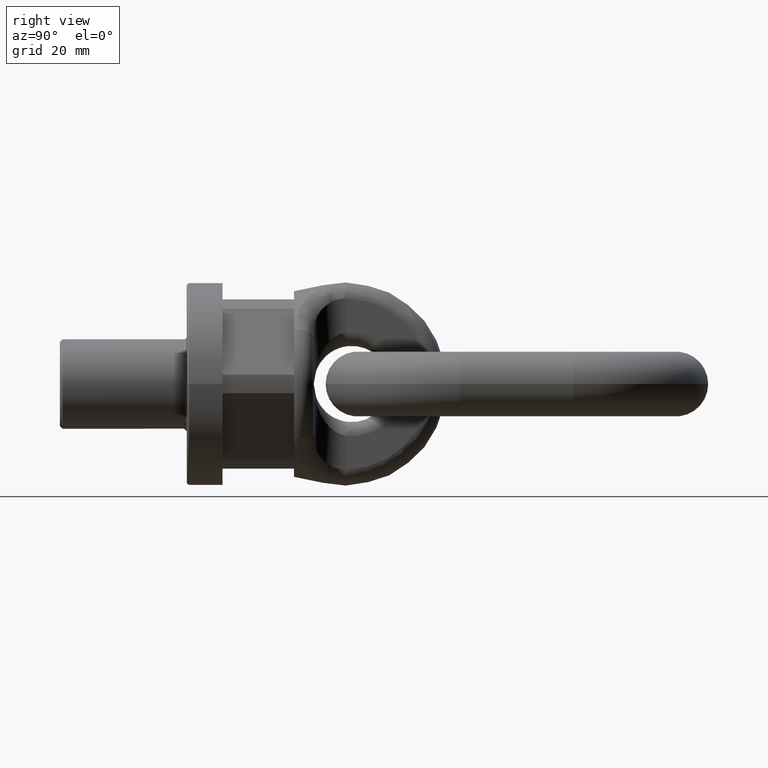
[diagram: clean part render]
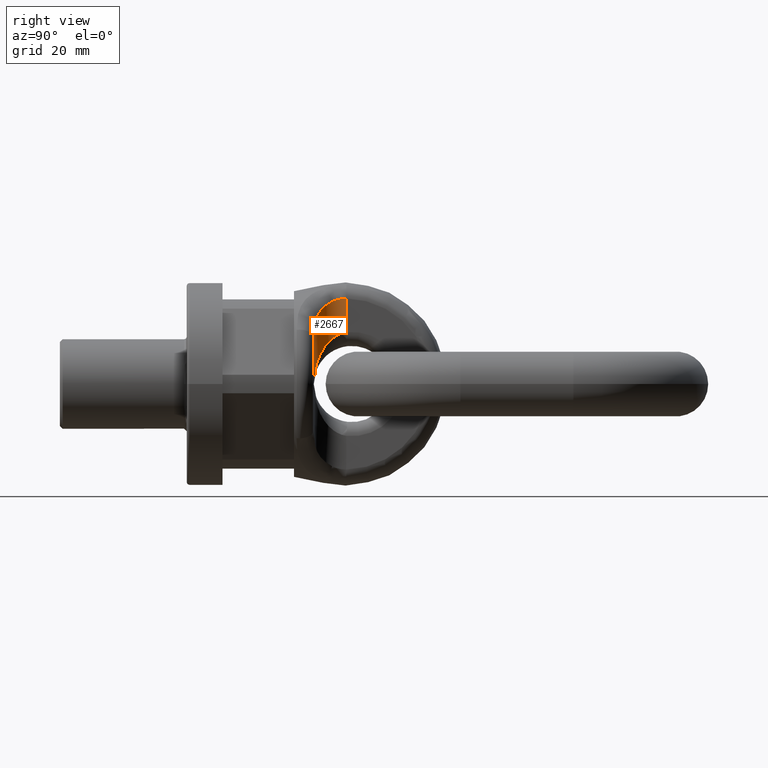
[diagram: same view with one face highlighted and labeled with its STEP entity id]
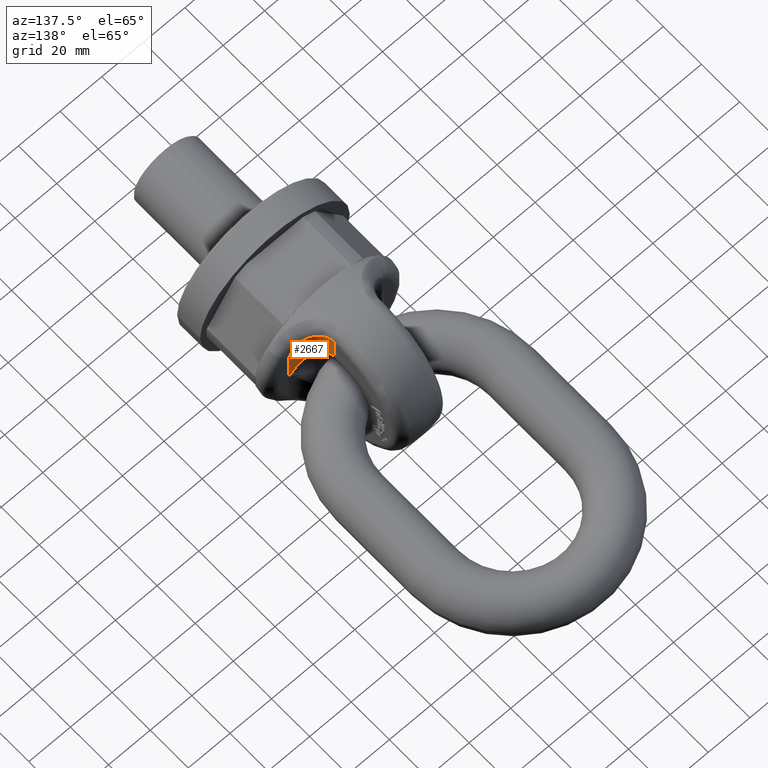
[diagram: same view with one face highlighted and labeled with its STEP entity id]
A machine part, right view. The second image highlights one B-rep face of the part: STEP entity #2667.
A second angle (auxiliary view) of the same face is appended — the face is thin or edge-on in the first view.
In plain terms, the highlighted cylindrical surface (edge-blend (fillet) strip) has radius 11.5 mm, axis along (0, 0, -1).
Its self-contained STEP definition (entity closure, byte-faithful):
#351=B_SPLINE_CURVE_WITH_KNOTS('',3,(#6972,#6973,#6974,#6975,#6976,#6977,
#6978,#6979),.UNSPECIFIED.,.F.,.F.,(4,2,2,4),(0.,0.5,0.75,1.),
 .UNSPECIFIED.);
#352=B_SPLINE_CURVE_WITH_KNOTS('',3,(#6980,#6981,#6982,#6983),
 .UNSPECIFIED.,.F.,.F.,(4,4),(0.,1.),.UNSPECIFIED.);
#353=B_SPLINE_CURVE_WITH_KNOTS('',3,(#6985,#6986,#6987,#6988,#6989,#6990),
 .UNSPECIFIED.,.F.,.F.,(4,2,4),(0.,0.5,1.),.UNSPECIFIED.);
#1820=FACE_OUTER_BOUND('',#3102,.T.);
#2028=CYLINDRICAL_SURFACE('',#5650,11.5);
#2071=LINE('',#6788,#2327);
#2099=LINE('',#6969,#2355);
#2327=VECTOR('',#5927,1.);
#2355=VECTOR('',#5961,1.);
#2667=ADVANCED_FACE('',(#1820),#2028,.F.);
#3102=EDGE_LOOP('',(#3511,#3512,#3513,#3514,#3515));
#3511=ORIENTED_EDGE('',*,*,#5058,.F.);
#3512=ORIENTED_EDGE('',*,*,#5059,.T.);
#3513=ORIENTED_EDGE('',*,*,#5008,.F.);
#3514=ORIENTED_EDGE('',*,*,#5060,.T.);
#3515=ORIENTED_EDGE('',*,*,#5061,.T.);
#4598=VERTEX_POINT('',#6789);
#4599=VERTEX_POINT('',#6790);
#4648=VERTEX_POINT('',#6970);
#4649=VERTEX_POINT('',#6971);
#4650=VERTEX_POINT('',#6984);
#5008=EDGE_CURVE('',#4598,#4599,#2071,.T.);
#5058=EDGE_CURVE('',#4648,#4649,#2099,.T.);
#5059=EDGE_CURVE('',#4648,#4599,#351,.T.);
#5060=EDGE_CURVE('',#4598,#4650,#352,.T.);
#5061=EDGE_CURVE('',#4650,#4649,#353,.T.);
#5650=AXIS2_PLACEMENT_3D('',#6991,#5962,#5963);
#5927=DIRECTION('',(0.,0.,-1.));
#5961=DIRECTION('',(0.,0.,1.));
#5962=DIRECTION('',(0.,0.,-1.));
#5963=DIRECTION('',(-1.,0.,0.));
#6788=CARTESIAN_POINT('',(11.5,56.5,-32.4669536068448));
#6789=CARTESIAN_POINT('',(11.5,56.5,30.3067649213835));
#6790=CARTESIAN_POINT('',(11.5,56.5,18.3915741577495));
#6969=CARTESIAN_POINT('',(23.,45.,32.4669536068448));
#6970=CARTESIAN_POINT('',(23.,45.,0.));
#6971=CARTESIAN_POINT('',(23.,45.,16.3663583016059));
#6972=CARTESIAN_POINT('',(23.,45.,-2.44145602852529E-15));
#6973=CARTESIAN_POINT('',(20.5875549996444,45.,3.66511348676932));
#6974=CARTESIAN_POINT('',(18.1505055652431,45.7060209649007,7.36077816048515));
#6975=CARTESIAN_POINT('',(14.8462021251498,48.2713928799089,12.4927495774917));
#6976=CARTESIAN_POINT('',(13.8116325034164,49.3744623953451,14.1208330035803));
#6977=CARTESIAN_POINT('',(12.1307347710493,52.3698115308923,16.9113574284354));
#6978=CARTESIAN_POINT('',(11.5,54.2920871033146,18.047082163915));
#6979=CARTESIAN_POINT('',(11.5,56.5,18.3915741577495));
#6980=CARTESIAN_POINT('',(11.5,56.5,30.3067649213835));
#6981=CARTESIAN_POINT('',(11.5,54.7139267212544,30.349043054415));
#6982=CARTESIAN_POINT('',(11.932559872913,52.9822713711434,29.9260515688375));
#6983=CARTESIAN_POINT('',(12.6318169353506,51.5249844283744,29.170844144231));
#6984=CARTESIAN_POINT('',(12.6318169353506,51.5249844283744,29.170844144231));
#6985=CARTESIAN_POINT('',(12.6318169353506,51.5249844283744,29.170844144231));
#6986=CARTESIAN_POINT('',(13.8558592455315,48.9740185935709,27.8488612993835));
#6987=CARTESIAN_POINT('',(15.9113250080998,47.1822162585958,26.1578730647848));
#6988=CARTESIAN_POINT('',(19.8426271006275,45.22607418125,21.7367777284566));
#6989=CARTESIAN_POINT('',(21.6187700503174,45.,19.1513754385613));
#6990=CARTESIAN_POINT('',(23.,45.,16.3663583016059));
#6991=CARTESIAN_POINT('',(23.,56.5,39.6));